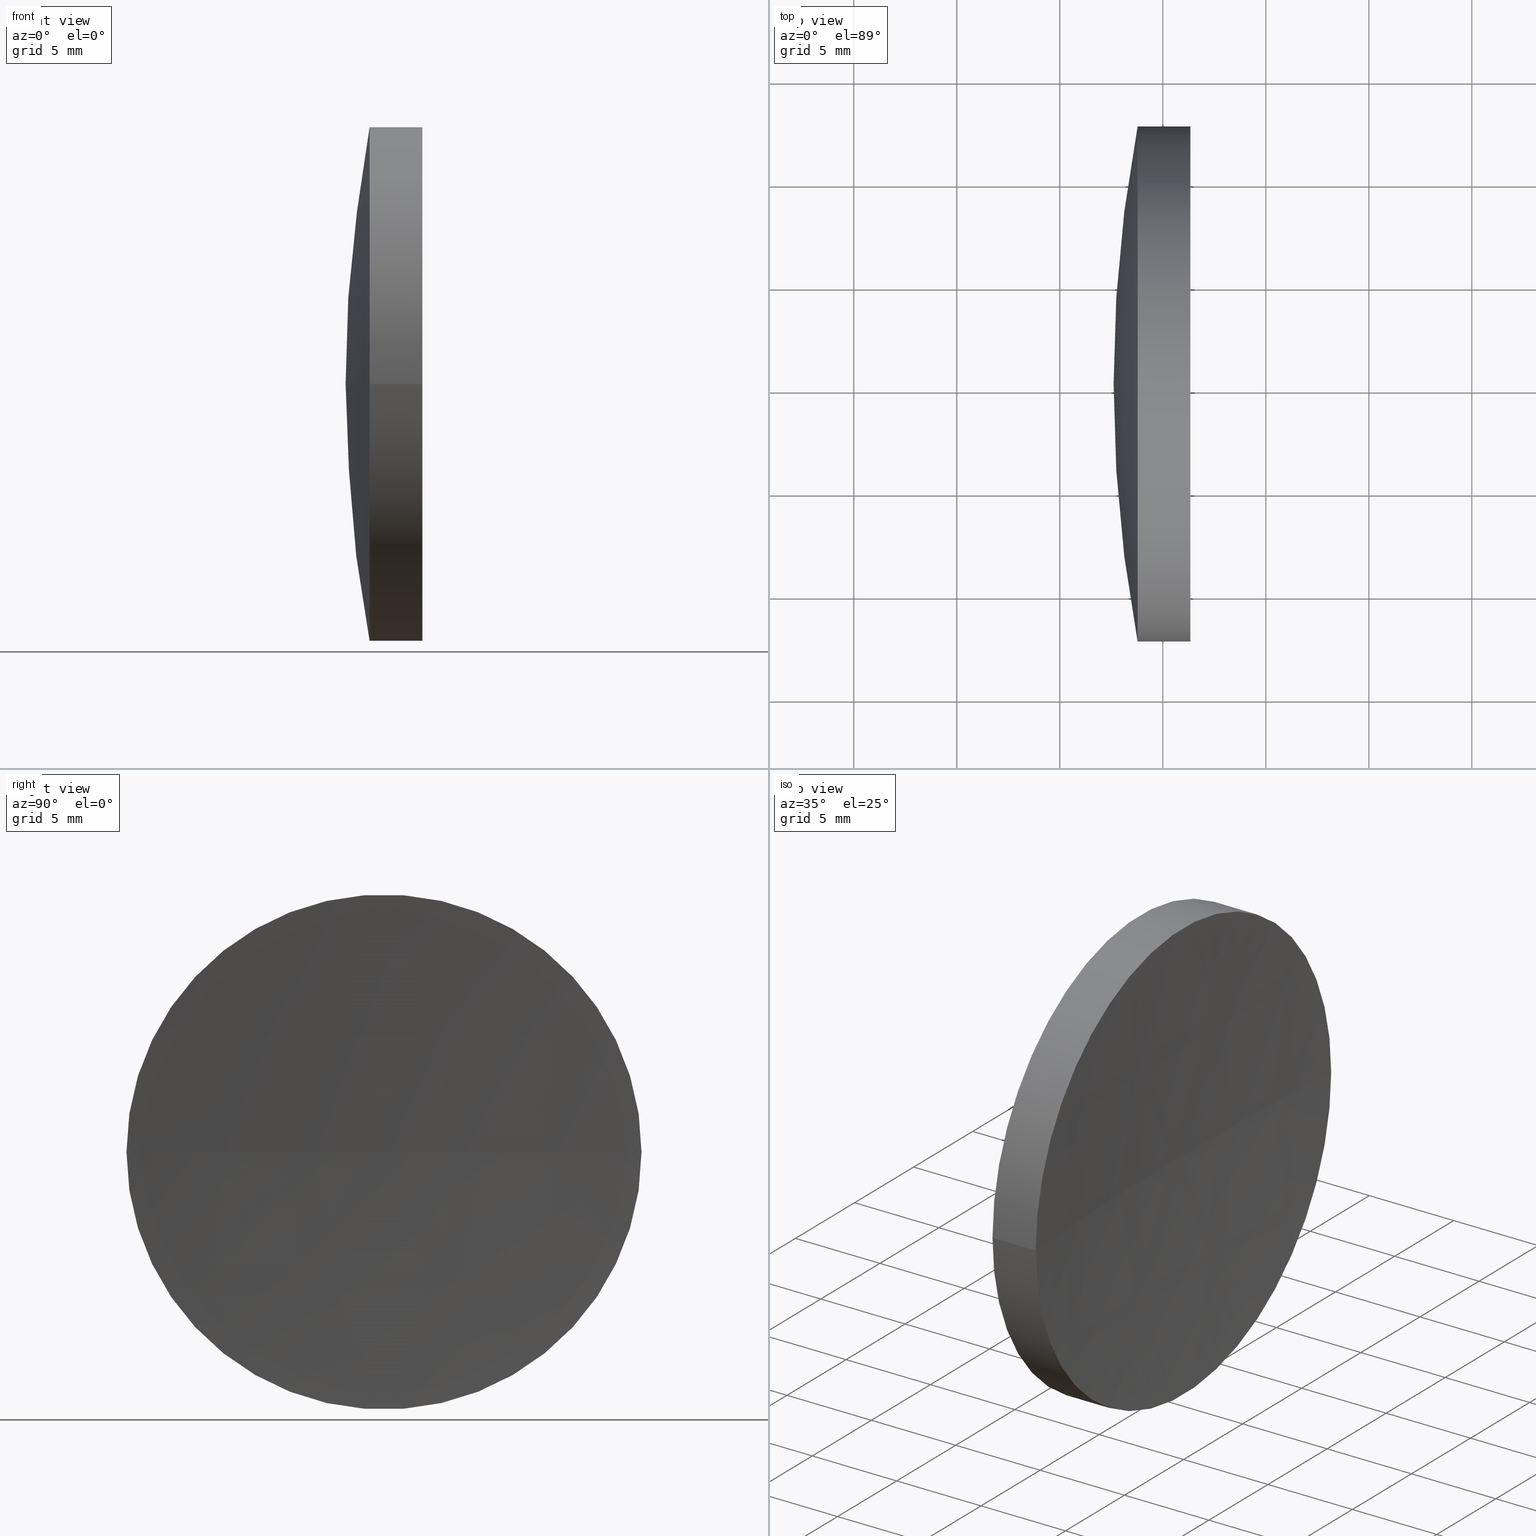
[diagram: canonical four-view strip — front | top / right | iso, engineering-drawing reading convention]
A machine part, canonical four-view strip (front | top / right | iso — engineering-drawing reading convention). The complete STEP part file that produces these views, byte-faithful:
ISO-10303-21;
HEADER;
FILE_DESCRIPTION (( 'STEP AP214' ),
    '1' );
FILE_NAME ('150007.STEP',
    '2019-07-04T05:58:41',
    ( '' ),
    ( '' ),
    'SwSTEP 2.0',
    'SolidWorks 2016',
    '' );
FILE_SCHEMA (( 'AUTOMOTIVE_DESIGN' ));
ENDSEC;

DATA;
#1 = DIRECTION ( 'NONE',  ( 0.0000000000000000000, -0.0000000000000000000, 1.000000000000000000 ) ) ;
#2 = DIRECTION ( 'NONE',  ( -8.199579206980475300E-016, 1.000000000000000000, 0.0000000000000000000 ) ) ;
#3 = CARTESIAN_POINT ( 'NONE',  ( 190.3121936984948100, 65.21684047094034000, 0.0000000000000000000 ) ) ;
#4 = DIRECTION ( 'NONE',  ( 1.110223024625159300E-015, -1.000000000000000000, 0.0000000000000000000 ) ) ;
#5 = DIRECTION ( 'NONE',  ( -0.0000000000000000000, 0.0000000000000000000, -1.000000000000000000 ) ) ;
#6 =( NAMED_UNIT ( * ) SI_UNIT ( $, .STERADIAN. ) SOLID_ANGLE_UNIT ( ) );
#7 = FILL_AREA_STYLE_COLOUR ( '', #78 ) ;
#8 = AXIS2_PLACEMENT_3D ( 'NONE', #71, #177, #96 ) ;
#9 = DIRECTION ( 'NONE',  ( -1.000000000000000000, -6.937607244762875000E-016, -0.0000000000000000000 ) ) ;
#10 = ORIENTED_EDGE ( 'NONE', *, *, #95, .F. ) ;
#11 = EDGE_CURVE ( 'NONE', #84, #45, #160, .T. ) ;
#12 = PRODUCT_DEFINITION_SHAPE ( 'NONE', 'NONE',  #161 ) ;
#13 = ORIENTED_EDGE ( 'NONE', *, *, #11, .F. ) ;
#14 = CLOSED_SHELL ( 'NONE', ( #92, #109, #156, #27, #40, #174 ) ) ;
#15 = CIRCLE ( 'NONE', #37, 67.70000000000001700 ) ;
#16 = ORIENTED_EDGE ( 'NONE', *, *, #76, .F. ) ;
#17 = SURFACE_STYLE_FILL_AREA ( #124 ) ;
#18 = AXIS2_PLACEMENT_3D ( 'NONE', #90, #65, #105 ) ;
#19 = ORIENTED_EDGE ( 'NONE', *, *, #35, .F. ) ;
#20 = VECTOR ( 'NONE', #138, 1000.000000000000000 ) ;
#21 = CIRCLE ( 'NONE', #87, 12.49999999999999100 ) ;
#22 = CARTESIAN_POINT ( 'NONE',  ( 123.7761884081259000, 65.21684047094032600, 0.0000000000000000000 ) ) ;
#23 = DIRECTION ( 'NONE',  ( -1.000000000000000000, -6.937607244762875000E-016, -0.0000000000000000000 ) ) ;
#24 = EDGE_LOOP ( 'NONE', ( #111, #54, #51 ) ) ;
#25 = SURFACE_STYLE_USAGE ( .BOTH. , #62 ) ;
#26 = AXIS2_PLACEMENT_3D ( 'NONE', #30, #145, #4 ) ;
#27 = ADVANCED_FACE ( 'NONE', ( #91 ), #104, .T. ) ;
#28 = ORIENTED_EDGE ( 'NONE', *, *, #186, .F. ) ;
#29 = PRODUCT_DEFINITION_FORMATION_WITH_SPECIFIED_SOURCE ( '�κ�', '', #184, .NOT_KNOWN. ) ;
#30 = CARTESIAN_POINT ( 'NONE',  ( 115.9444912979631700, 65.21684047094032600, 0.0000000000000000000 ) ) ;
#31 = CARTESIAN_POINT ( 'NONE',  ( 126.3396053945547700, 52.71684047094021300, -1.530808498934187000E-015 ) ) ;
#32 = STYLED_ITEM ( 'NONE', ( #88 ), #50 ) ;
#33 =( LENGTH_UNIT ( ) NAMED_UNIT ( * ) SI_UNIT ( .MILLI., .METRE. ) );
#34 = FILL_AREA_STYLE_COLOUR ( '', #164 ) ;
#35 = EDGE_CURVE ( 'NONE', #100, #45, #140, .T. ) ;
#36 = SPHERICAL_SURFACE ( 'NONE', #181, 182.9999999999999700 ) ;
#37 = AXIS2_PLACEMENT_3D ( 'NONE', #147, #190, #73 ) ;
#38 = SHAPE_DEFINITION_REPRESENTATION ( #12, #50 ) ;
#39 = EDGE_CURVE ( 'NONE', #100, #84, #146, .T. ) ;
#40 = ADVANCED_FACE ( 'NONE', ( #63 ), #36, .F. ) ;
#41 = ORIENTED_EDGE ( 'NONE', *, *, #173, .T. ) ;
#42 = DIRECTION ( 'NONE',  ( 0.0000000000000000000, 0.0000000000000000000, -1.000000000000000000 ) ) ;
#43 = ORIENTED_EDGE ( 'NONE', *, *, #89, .T. ) ;
#44 = EDGE_CURVE ( 'NONE', #106, #52, #15, .T. ) ;
#45 = VERTEX_POINT ( 'NONE', #128 ) ;
#46 = SURFACE_SIDE_STYLE ('',( #107 ) ) ;
#47 = SPHERICAL_SURFACE ( 'NONE', #143, 182.9999999999999700 ) ;
#48 = CARTESIAN_POINT ( 'NONE',  ( 123.7761884081258800, 77.71684047094031200, 0.0000000000000000000 ) ) ;
#49 = DIRECTION ( 'NONE',  ( -8.199579206980475300E-016, 1.000000000000000000, 0.0000000000000000000 ) ) ;
#50 = ADVANCED_BREP_SHAPE_REPRESENTATION ( '150007', ( #144, #18 ), #163 ) ;
#51 = ORIENTED_EDGE ( 'NONE', *, *, #44, .T. ) ;
#52 = VERTEX_POINT ( 'NONE', #98 ) ;
#53 = APPLICATION_CONTEXT ( 'automotive_design' ) ;
#54 = ORIENTED_EDGE ( 'NONE', *, *, #95, .T. ) ;
#55 = LINE ( 'NONE', #171, #20 ) ;
#56 = UNCERTAINTY_MEASURE_WITH_UNIT (LENGTH_MEASURE( 1.000000000000000100E-005 ), #33, 'distance_accuracy_value', 'NONE');
#57 = CARTESIAN_POINT ( 'NONE',  ( 126.3396053945547700, 65.21684047094034000, 0.0000000000000000000 ) ) ;
#58 = ORIENTED_EDGE ( 'NONE', *, *, #44, .F. ) ;
#59 = VECTOR ( 'NONE', #168, 1000.000000000000000 ) ;
#60 = DIRECTION ( 'NONE',  ( 0.0000000000000000000, 1.000000000000000000, 1.224646799147353000E-016 ) ) ;
#61 = DIRECTION ( 'NONE',  ( -6.066792484290472700E-016, 1.000000000000000000, 0.0000000000000000000 ) ) ;
#62 = SURFACE_SIDE_STYLE ('',( #17 ) ) ;
#63 = FACE_OUTER_BOUND ( 'NONE', #127, .T. ) ;
#64 = CIRCLE ( 'NONE', #191, 12.49999999999999100 ) ;
#65 = DIRECTION ( 'NONE',  ( 0.0000000000000000000, 0.0000000000000000000, 1.000000000000000000 ) ) ;
#66 =( NAMED_UNIT ( * ) PLANE_ANGLE_UNIT ( ) SI_UNIT ( $, .RADIAN. ) );
#67 = APPLICATION_PROTOCOL_DEFINITION ( 'draft international standard', 'automotive_design', 1998, #53 ) ;
#68 = AXIS2_PLACEMENT_3D ( 'NONE', #74, #183, #2 ) ;
#69 = CYLINDRICAL_SURFACE ( 'NONE', #26, 12.49999999999997000 ) ;
#70 = PRESENTATION_STYLE_ASSIGNMENT (( #132 ) ) ;
#71 = CARTESIAN_POINT ( 'NONE',  ( 126.3396053945547700, 65.21684047094034000, 0.0000000000000000000 ) ) ;
#72 = EDGE_LOOP ( 'NONE', ( #80, #125, #10, #162 ) ) ;
#73 = DIRECTION ( 'NONE',  ( 1.000000000000000000, 0.0000000000000000000, 0.0000000000000000000 ) ) ;
#74 = CARTESIAN_POINT ( 'NONE',  ( 190.3121936984948100, 65.21684047094034000, 0.0000000000000000000 ) ) ;
#75 = DIRECTION ( 'NONE',  ( 1.110223024625159300E-015, -1.000000000000000000, 0.0000000000000000000 ) ) ;
#76 = EDGE_CURVE ( 'NONE', #84, #100, #142, .T. ) ;
#77 = APPLICATION_CONTEXT ( 'automotive_design' ) ;
#78 = COLOUR_RGB ( '',1.000000000000000000, 1.000000000000000000, 1.000000000000000000 ) ;
#79 = UNCERTAINTY_MEASURE_WITH_UNIT (LENGTH_MEASURE( 1.000000000000000100E-005 ), #172, 'distance_accuracy_value', 'NONE');
#80 = ORIENTED_EDGE ( 'NONE', *, *, #39, .T. ) ;
#81 = ORIENTED_EDGE ( 'NONE', *, *, #39, .F. ) ;
#82 = CARTESIAN_POINT ( 'NONE',  ( 308.9121936984948300, 65.21684047094029800, 0.0000000000000000000 ) ) ;
#83 = AXIS2_PLACEMENT_3D ( 'NONE', #57, #133, #86 ) ;
#84 = VERTEX_POINT ( 'NONE', #148 ) ;
#85 = CARTESIAN_POINT ( 'NONE',  ( 308.9121936984948300, 65.21684047094029800, 0.0000000000000000000 ) ) ;
#86 = DIRECTION ( 'NONE',  ( 0.0000000000000000000, -1.000000000000000000, 0.0000000000000000000 ) ) ;
#87 = AXIS2_PLACEMENT_3D ( 'NONE', #22, #131, #185 ) ;
#88 = PRESENTATION_STYLE_ASSIGNMENT (( #25 ) ) ;
#89 = EDGE_CURVE ( 'NONE', #129, #52, #157, .T. ) ;
#90 = CARTESIAN_POINT ( 'NONE',  ( 0.0000000000000000000, 0.0000000000000000000, 0.0000000000000000000 ) ) ;
#91 = FACE_OUTER_BOUND ( 'NONE', #24, .T. ) ;
#92 = ADVANCED_FACE ( 'NONE', ( #159 ), #69, .T. ) ;
#93 = PRESENTATION_LAYER_ASSIGNMENT (  '', '', ( #139 ) ) ;
#94 = ORIENTED_EDGE ( 'NONE', *, *, #189, .T. ) ;
#95 = EDGE_CURVE ( 'NONE', #129, #106, #21, .T. ) ;
#96 = DIRECTION ( 'NONE',  ( 0.0000000000000000000, -1.000000000000000000, 0.0000000000000000000 ) ) ;
#97 = PRESENTATION_LAYER_ASSIGNMENT (  '', '', ( #32 ) ) ;
#98 = CARTESIAN_POINT ( 'NONE',  ( 122.6121936984947900, 65.21684047094029800, 0.0000000000000000000 ) ) ;
#99 = AXIS2_PLACEMENT_3D ( 'NONE', #179, #1, #178 ) ;
#100 = VERTEX_POINT ( 'NONE', #31 ) ;
#101 = UNCERTAINTY_MEASURE_WITH_UNIT (LENGTH_MEASURE( 1.000000000000000100E-005 ), #118, 'distance_accuracy_value', 'NONE');
#102 = CARTESIAN_POINT ( 'NONE',  ( 190.3121936984948100, 65.21684047094034000, 0.0000000000000000000 ) ) ;
#103 = DIRECTION ( 'NONE',  ( 0.0000000000000000000, 0.0000000000000000000, -1.000000000000000000 ) ) ;
#104 = SPHERICAL_SURFACE ( 'NONE', #68, 67.70000000000001700 ) ;
#105 = DIRECTION ( 'NONE',  ( 1.000000000000000000, 0.0000000000000000000, 0.0000000000000000000 ) ) ;
#106 = VERTEX_POINT ( 'NONE', #48 ) ;
#107 = SURFACE_STYLE_FILL_AREA ( #165 ) ;
#108 =( GEOMETRIC_REPRESENTATION_CONTEXT ( 3 ) GLOBAL_UNCERTAINTY_ASSIGNED_CONTEXT ( ( #79 ) ) GLOBAL_UNIT_ASSIGNED_CONTEXT ( ( #172, #136, #6 ) ) REPRESENTATION_CONTEXT ( 'NONE', 'WORKASPACE' ) );
#109 = ADVANCED_FACE ( 'NONE', ( #113 ), #47, .F. ) ;
#110 = SPHERICAL_SURFACE ( 'NONE', #187, 67.70000000000001700 ) ;
#111 = ORIENTED_EDGE ( 'NONE', *, *, #89, .F. ) ;
#112 = DIRECTION ( 'NONE',  ( -6.066792484290472700E-016, 1.000000000000000000, 0.0000000000000000000 ) ) ;
#113 = FACE_OUTER_BOUND ( 'NONE', #135, .T. ) ;
#114 = MECHANICAL_DESIGN_GEOMETRIC_PRESENTATION_REPRESENTATION (  '', ( #32 ), #108 ) ;
#115 = CARTESIAN_POINT ( 'NONE',  ( 308.9121936984948300, 65.21684047094029800, 0.0000000000000000000 ) ) ;
#116 = ORIENTED_EDGE ( 'NONE', *, *, #76, .T. ) ;
#117 = DIRECTION ( 'NONE',  ( 0.0000000000000000000, 1.000000000000000000, 1.224646799147353200E-016 ) ) ;
#118 =( LENGTH_UNIT ( ) NAMED_UNIT ( * ) SI_UNIT ( .MILLI., .METRE. ) );
#119 = AXIS2_PLACEMENT_3D ( 'NONE', #82, #192, #60 ) ;
#120 = APPLICATION_PROTOCOL_DEFINITION ( 'draft international standard', 'automotive_design', 1998, #77 ) ;
#121 = CARTESIAN_POINT ( 'NONE',  ( 115.9444912979631500, 77.71684047094029800, 1.530808498934187800E-015 ) ) ;
#122 = ORIENTED_EDGE ( 'NONE', *, *, #35, .T. ) ;
#123 = EDGE_LOOP ( 'NONE', ( #28, #116, #94, #158 ) ) ;
#124 = FILL_AREA_STYLE ('',( #7 ) ) ;
#125 = ORIENTED_EDGE ( 'NONE', *, *, #186, .T. ) ;
#126 = AXIS2_PLACEMENT_3D ( 'NONE', #3, #151, #117 ) ;
#127 = EDGE_LOOP ( 'NONE', ( #19, #16, #188 ) ) ;
#128 = CARTESIAN_POINT ( 'NONE',  ( 125.9121936984948500, 65.21684047094018400, 0.0000000000000000000 ) ) ;
#129 = VERTEX_POINT ( 'NONE', #130 ) ;
#130 = CARTESIAN_POINT ( 'NONE',  ( 123.7761884081259000, 52.71684047094031200, -1.530808498934189900E-015 ) ) ;
#131 = DIRECTION ( 'NONE',  ( -1.000000000000000000, -6.937607244762875000E-016, -0.0000000000000000000 ) ) ;
#132 = SURFACE_STYLE_USAGE ( .BOTH. , #46 ) ;
#133 = DIRECTION ( 'NONE',  ( -1.000000000000000000, -6.937607244762875000E-016, -0.0000000000000000000 ) ) ;
#134 = AXIS2_PLACEMENT_3D ( 'NONE', #166, #23, #75 ) ;
#135 = EDGE_LOOP ( 'NONE', ( #81, #122, #13 ) ) ;
#136 =( NAMED_UNIT ( * ) PLANE_ANGLE_UNIT ( ) SI_UNIT ( $, .RADIAN. ) );
#137 = LINE ( 'NONE', #121, #59 ) ;
#138 = DIRECTION ( 'NONE',  ( -1.000000000000000000, -6.937607244762875000E-016, -0.0000000000000000000 ) ) ;
#139 = STYLED_ITEM ( 'NONE', ( #70 ), #144 ) ;
#140 = CIRCLE ( 'NONE', #119, 183.0000000000000000 ) ;
#141 = FACE_OUTER_BOUND ( 'NONE', #180, .T. ) ;
#142 = CIRCLE ( 'NONE', #83, 12.49999999999994800 ) ;
#143 = AXIS2_PLACEMENT_3D ( 'NONE', #85, #103, #61 ) ;
#144 = MANIFOLD_SOLID_BREP ( '��ת1', #14 ) ;
#145 = DIRECTION ( 'NONE',  ( -1.000000000000000000, -6.937607244762875000E-016, -0.0000000000000000000 ) ) ;
#146 = CIRCLE ( 'NONE', #8, 12.49999999999994800 ) ;
#147 = CARTESIAN_POINT ( 'NONE',  ( 190.3121936984948100, 65.21684047094034000, 0.0000000000000000000 ) ) ;
#148 = CARTESIAN_POINT ( 'NONE',  ( 126.3396053945547700, 77.71684047094029800, 0.0000000000000000000 ) ) ;
#149 =( NAMED_UNIT ( * ) SI_UNIT ( $, .STERADIAN. ) SOLID_ANGLE_UNIT ( ) );
#150 =( NAMED_UNIT ( * ) PLANE_ANGLE_UNIT ( ) SI_UNIT ( $, .RADIAN. ) );
#151 = DIRECTION ( 'NONE',  ( -8.496118506040342700E-032, 1.224646799147353200E-016, -1.000000000000000000 ) ) ;
#152 = MECHANICAL_DESIGN_GEOMETRIC_PRESENTATION_REPRESENTATION (  '', ( #139 ), #155 ) ;
#153 =( NAMED_UNIT ( * ) SI_UNIT ( $, .STERADIAN. ) SOLID_ANGLE_UNIT ( ) );
#154 = DIRECTION ( 'NONE',  ( 1.110223024625157300E-015, -1.000000000000000000, 0.0000000000000000000 ) ) ;
#155 =( GEOMETRIC_REPRESENTATION_CONTEXT ( 3 ) GLOBAL_UNCERTAINTY_ASSIGNED_CONTEXT ( ( #56 ) ) GLOBAL_UNIT_ASSIGNED_CONTEXT ( ( #33, #150, #149 ) ) REPRESENTATION_CONTEXT ( 'NONE', 'WORKASPACE' ) );
#156 = ADVANCED_FACE ( 'NONE', ( #141 ), #110, .T. ) ;
#157 = CIRCLE ( 'NONE', #126, 67.70000000000001700 ) ;
#158 = ORIENTED_EDGE ( 'NONE', *, *, #173, .F. ) ;
#159 = FACE_OUTER_BOUND ( 'NONE', #72, .T. ) ;
#160 = CIRCLE ( 'NONE', #99, 183.0000000000000000 ) ;
#161 = PRODUCT_DEFINITION ( 'δ֪', '', #29, #170 ) ;
#162 = ORIENTED_EDGE ( 'NONE', *, *, #189, .F. ) ;
#163 =( GEOMETRIC_REPRESENTATION_CONTEXT ( 3 ) GLOBAL_UNCERTAINTY_ASSIGNED_CONTEXT ( ( #101 ) ) GLOBAL_UNIT_ASSIGNED_CONTEXT ( ( #118, #66, #153 ) ) REPRESENTATION_CONTEXT ( 'NONE', 'WORKASPACE' ) );
#164 = COLOUR_RGB ( '',1.000000000000000000, 1.000000000000000000, 1.000000000000000000 ) ;
#165 = FILL_AREA_STYLE ('',( #34 ) ) ;
#166 = CARTESIAN_POINT ( 'NONE',  ( 115.9444912979631700, 65.21684047094032600, 0.0000000000000000000 ) ) ;
#167 = CARTESIAN_POINT ( 'NONE',  ( 123.7761884081259000, 65.21684047094032600, 0.0000000000000000000 ) ) ;
#168 = DIRECTION ( 'NONE',  ( -1.000000000000000000, -6.937607244762875000E-016, -0.0000000000000000000 ) ) ;
#169 = PRODUCT_CONTEXT ( 'NONE', #53, 'mechanical' ) ;
#170 = PRODUCT_DEFINITION_CONTEXT ( 'detailed design', #77, 'design' ) ;
#171 = CARTESIAN_POINT ( 'NONE',  ( 115.9444912979631800, 52.71684047094035500, 0.0000000000000000000 ) ) ;
#172 =( LENGTH_UNIT ( ) NAMED_UNIT ( * ) SI_UNIT ( .MILLI., .METRE. ) );
#173 = EDGE_CURVE ( 'NONE', #106, #129, #64, .T. ) ;
#174 = ADVANCED_FACE ( 'NONE', ( #182 ), #175, .T. ) ;
#175 = CYLINDRICAL_SURFACE ( 'NONE', #134, 12.49999999999997000 ) ;
#176 = PRODUCT_RELATED_PRODUCT_CATEGORY ( 'part', '', ( #184 ) ) ;
#177 = DIRECTION ( 'NONE',  ( -1.000000000000000000, -6.937607244762875000E-016, -0.0000000000000000000 ) ) ;
#178 = DIRECTION ( 'NONE',  ( 1.000000000000000000, 0.0000000000000000000, 0.0000000000000000000 ) ) ;
#179 = CARTESIAN_POINT ( 'NONE',  ( 308.9121936984948300, 65.21684047094029800, 0.0000000000000000000 ) ) ;
#180 = EDGE_LOOP ( 'NONE', ( #41, #43, #58 ) ) ;
#181 = AXIS2_PLACEMENT_3D ( 'NONE', #115, #42, #112 ) ;
#182 = FACE_OUTER_BOUND ( 'NONE', #123, .T. ) ;
#183 = DIRECTION ( 'NONE',  ( -0.0000000000000000000, 0.0000000000000000000, -1.000000000000000000 ) ) ;
#184 = PRODUCT ( '150007', '150007', '', ( #169 ) ) ;
#185 = DIRECTION ( 'NONE',  ( 1.110223024625157300E-015, -1.000000000000000000, 0.0000000000000000000 ) ) ;
#186 = EDGE_CURVE ( 'NONE', #84, #106, #137, .T. ) ;
#187 = AXIS2_PLACEMENT_3D ( 'NONE', #102, #5, #49 ) ;
#188 = ORIENTED_EDGE ( 'NONE', *, *, #11, .T. ) ;
#189 = EDGE_CURVE ( 'NONE', #100, #129, #55, .T. ) ;
#190 = DIRECTION ( 'NONE',  ( -0.0000000000000000000, 0.0000000000000000000, 1.000000000000000000 ) ) ;
#191 = AXIS2_PLACEMENT_3D ( 'NONE', #167, #9, #154 ) ;
#192 = DIRECTION ( 'NONE',  ( -8.496118506040342700E-032, 1.224646799147353200E-016, -1.000000000000000000 ) ) ;
ENDSEC;
END-ISO-10303-21;
